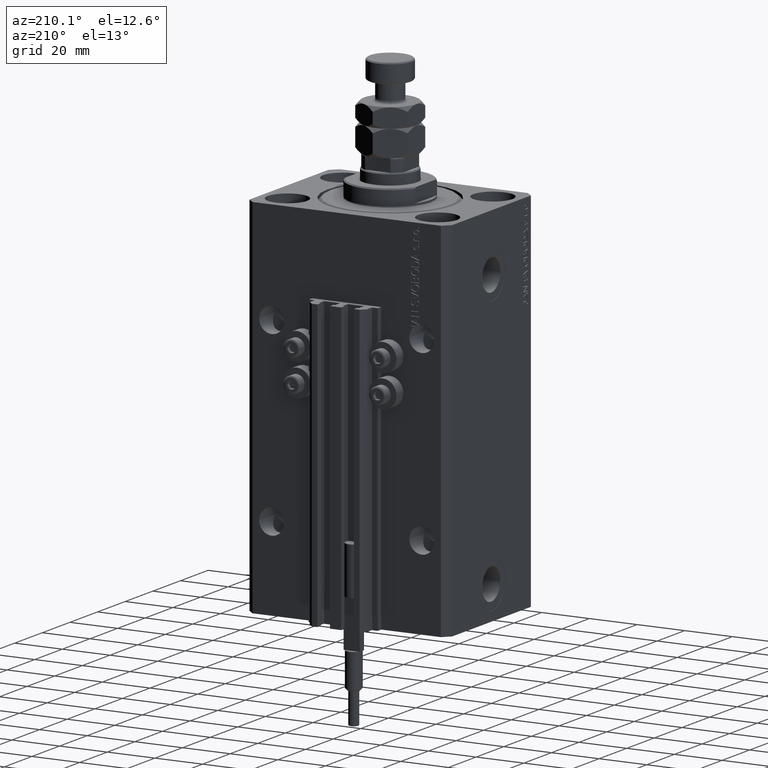
[diagram: clean part render]
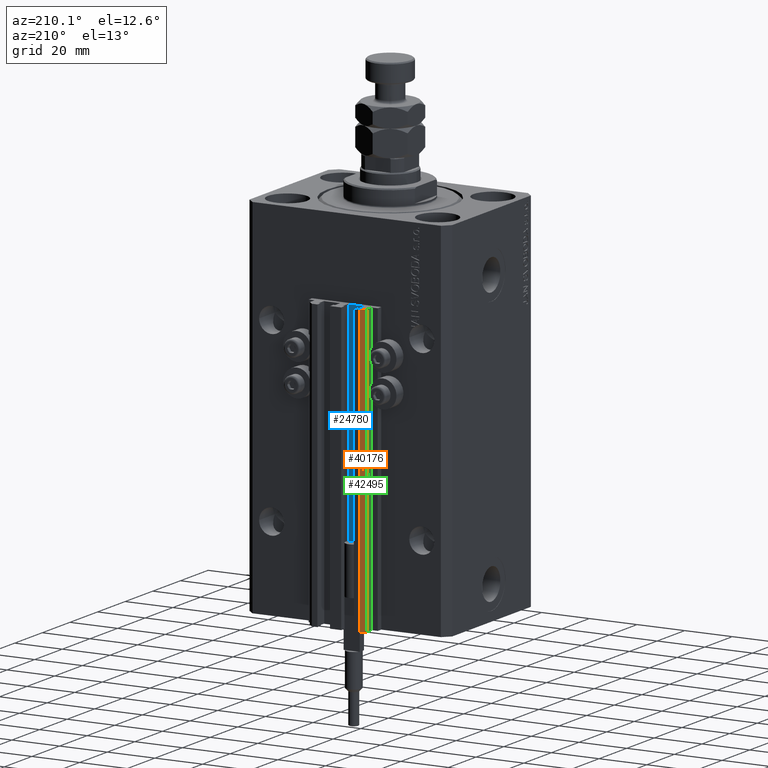
[diagram: same view with three faces highlighted in distinct colors, each labeled with its STEP entity id]
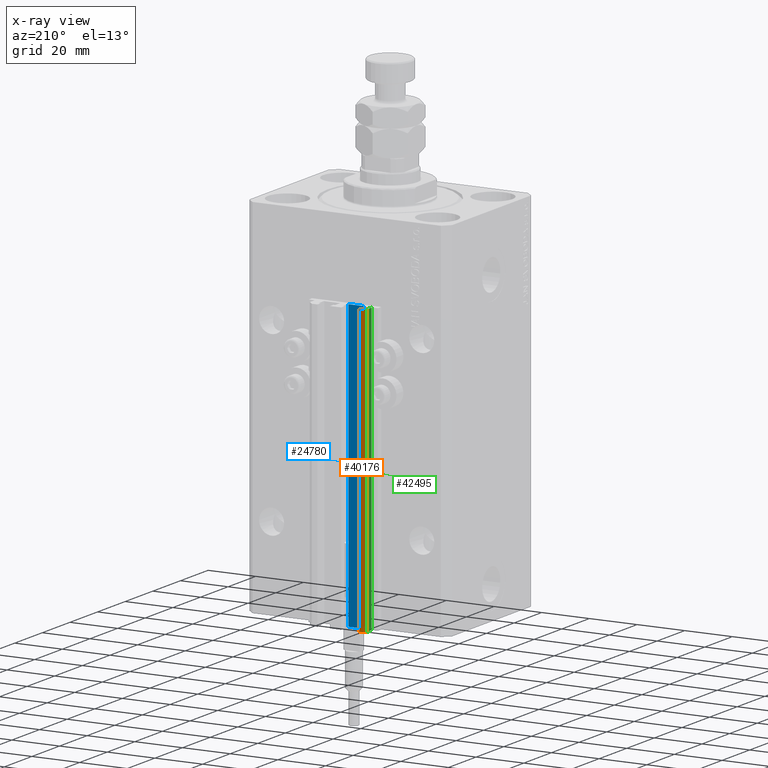
[diagram: x-ray of the same camera — body ghosted, the three highlighted faces saturated]
A machine part, auxiliary view with three faces highlighted in distinct colors.
The next image is the same camera in x-ray (body ghosted, the three faces saturated) — at least one of them is partly hidden behind the body in this view.
Their STEP definitions:

[orange] entity #40176 — the highlighted planar face has unit normal (-0.7071, 0.7071, 0).
#122 = CARTESIAN_POINT ( 'NONE',  ( -12.00000000000000000, 37.49999999999999289, -33.00000000000000000 ) ) ;
#1200 = LINE ( 'NONE', #13208, #17939 ) ;
#2870 = ORIENTED_EDGE ( 'NONE', *, *, #6327, .F. ) ;
#3525 = DIRECTION ( 'NONE',  ( -0.7071067811865472397, -0.7071067811865479058, 0.000000000000000000 ) ) ;
#3603 = VECTOR ( 'NONE', #37001, 999.9999999999998863 ) ;
#4174 = ORIENTED_EDGE ( 'NONE', *, *, #13175, .T. ) ;
#6327 = EDGE_CURVE ( 'NONE', #42154, #9538, #9653, .T. ) ;
#8878 = DIRECTION ( 'NONE',  ( 0.000000000000000000, 0.000000000000000000, 1.000000000000000000 ) ) ;
#9399 = DIRECTION ( 'NONE',  ( 0.000000000000000000, 0.000000000000000000, 1.000000000000000000 ) ) ;
#9538 = VERTEX_POINT ( 'NONE', #34106 ) ;
#9653 = LINE ( 'NONE', #49459, #33865 ) ;
#11024 = CARTESIAN_POINT ( 'NONE',  ( -10.00000000000000000, 39.49999999999999289, -153.0000000000000000 ) ) ;
#11202 = LINE ( 'NONE', #31140, #45678 ) ;
#12562 = VERTEX_POINT ( 'NONE', #37371 ) ;
#13175 = EDGE_CURVE ( 'NONE', #12562, #21699, #1200, .T. ) ;
#13208 = CARTESIAN_POINT ( 'NONE',  ( -12.00000000000000000, 37.49999999999999289, -153.0000000000000000 ) ) ;
#14840 = FACE_OUTER_BOUND ( 'NONE', #33559, .T. ) ;
#17939 = VECTOR ( 'NONE', #8878, 1000.000000000000000 ) ;
#19415 = PLANE ( 'NONE',  #41803 ) ;
#21550 = EDGE_CURVE ( 'NONE', #42154, #12562, #32132, .T. ) ;
#21699 = VERTEX_POINT ( 'NONE', #122 ) ;
#22769 = CARTESIAN_POINT ( 'NONE',  ( -10.00000000000000000, 39.49999999999999289, -153.0000000000000000 ) ) ;
#28567 = CARTESIAN_POINT ( 'NONE',  ( -10.00000000000000000, 39.49999999999999289, -153.0000000000000000 ) ) ;
#30288 = ORIENTED_EDGE ( 'NONE', *, *, #21550, .T. ) ;
#31140 = CARTESIAN_POINT ( 'NONE',  ( -10.00000000000000000, 39.49999999999999289, -33.00000000000000000 ) ) ;
#31191 = DIRECTION ( 'NONE',  ( -0.7071067811865472397, -0.7071067811865479058, 0.000000000000000000 ) ) ;
#32132 = LINE ( 'NONE', #28567, #3603 ) ;
#33559 = EDGE_LOOP ( 'NONE', ( #49760, #2870, #30288, #4174 ) ) ;
#33865 = VECTOR ( 'NONE', #9399, 1000.000000000000000 ) ;
#34106 = CARTESIAN_POINT ( 'NONE',  ( -10.00000000000000000, 39.49999999999999289, -33.00000000000000000 ) ) ;
#37001 = DIRECTION ( 'NONE',  ( -0.7071067811865472397, -0.7071067811865479058, 0.000000000000000000 ) ) ;
#37371 = CARTESIAN_POINT ( 'NONE',  ( -12.00000000000000000, 37.49999999999999289, -153.0000000000000000 ) ) ;
#40176 = ADVANCED_FACE ( 'NONE', ( #14840 ), #19415, .T. ) ;
#41803 = AXIS2_PLACEMENT_3D ( 'NONE', #22769, #46785, #31191 ) ;
#42154 = VERTEX_POINT ( 'NONE', #11024 ) ;
#45678 = VECTOR ( 'NONE', #3525, 999.9999999999998863 ) ;
#46785 = DIRECTION ( 'NONE',  ( -0.7071067811865479058, 0.7071067811865472397, 0.000000000000000000 ) ) ;
#47260 = EDGE_CURVE ( 'NONE', #9538, #21699, #11202, .T. ) ;
#49459 = CARTESIAN_POINT ( 'NONE',  ( -10.00000000000000000, 39.49999999999999289, -153.0000000000000000 ) ) ;
#49760 = ORIENTED_EDGE ( 'NONE', *, *, #47260, .F. ) ;

[blue] entity #24780 — the highlighted planar face has unit normal (0, 1, 0).
#97 = CARTESIAN_POINT ( 'NONE',  ( -8.199999999999997513, 33.50000000000000000, -33.00000000000000000 ) ) ;
#1814 = FACE_OUTER_BOUND ( 'NONE', #21886, .T. ) ;
#4168 = ORIENTED_EDGE ( 'NONE', *, *, #7399, .F. ) ;
#6131 = VECTOR ( 'NONE', #18323, 1000.000000000000000 ) ;
#6430 = EDGE_CURVE ( 'NONE', #23986, #16268, #10603, .T. ) ;
#6548 = ORIENTED_EDGE ( 'NONE', *, *, #40722, .F. ) ;
#6583 = CARTESIAN_POINT ( 'NONE',  ( -1.800000000000000933, 33.50000000000000000, -153.0000000000000000 ) ) ;
#7399 = EDGE_CURVE ( 'NONE', #44749, #30513, #26020, .T. ) ;
#8984 = PLANE ( 'NONE',  #31492 ) ;
#9574 = CARTESIAN_POINT ( 'NONE',  ( -1.800000000000000933, 33.50000000000000000, -153.0000000000000000 ) ) ;
#10603 = LINE ( 'NONE', #26204, #19964 ) ;
#13245 = DIRECTION ( 'NONE',  ( -1.000000000000000000, 0.000000000000000000, 0.000000000000000000 ) ) ;
#16268 = VERTEX_POINT ( 'NONE', #97 ) ;
#18323 = DIRECTION ( 'NONE',  ( 0.000000000000000000, 0.000000000000000000, 1.000000000000000000 ) ) ;
#19964 = VECTOR ( 'NONE', #22600, 1000.000000000000000 ) ;
#21852 = ORIENTED_EDGE ( 'NONE', *, *, #26007, .T. ) ;
#21886 = EDGE_LOOP ( 'NONE', ( #6548, #4168, #21852, #45156 ) ) ;
#22600 = DIRECTION ( 'NONE',  ( 0.000000000000000000, 0.000000000000000000, 1.000000000000000000 ) ) ;
#23986 = VERTEX_POINT ( 'NONE', #27317 ) ;
#24063 = DIRECTION ( 'NONE',  ( 0.000000000000000000, 0.000000000000000000, 1.000000000000000000 ) ) ;
#24780 = ADVANCED_FACE ( 'NONE', ( #1814 ), #8984, .T. ) ;
#25241 = CARTESIAN_POINT ( 'NONE',  ( -1.800000000000000933, 33.50000000000000000, -33.00000000000000000 ) ) ;
#26007 = EDGE_CURVE ( 'NONE', #44749, #23986, #37028, .T. ) ;
#26020 = LINE ( 'NONE', #6583, #6131 ) ;
#26204 = CARTESIAN_POINT ( 'NONE',  ( -8.199999999999997513, 33.50000000000000000, -153.0000000000000000 ) ) ;
#27317 = CARTESIAN_POINT ( 'NONE',  ( -8.199999999999997513, 33.50000000000000000, -153.0000000000000000 ) ) ;
#30513 = VERTEX_POINT ( 'NONE', #33849 ) ;
#31492 = AXIS2_PLACEMENT_3D ( 'NONE', #32744, #32487, #24063 ) ;
#32487 = DIRECTION ( 'NONE',  ( 0.000000000000000000, 1.000000000000000000, -0.000000000000000000 ) ) ;
#32744 = CARTESIAN_POINT ( 'NONE',  ( -1.800000000000000933, 33.50000000000000000, -153.0000000000000000 ) ) ;
#33849 = CARTESIAN_POINT ( 'NONE',  ( -1.800000000000000933, 33.50000000000000000, -33.00000000000000000 ) ) ;
#37028 = LINE ( 'NONE', #44429, #45420 ) ;
#40722 = EDGE_CURVE ( 'NONE', #30513, #16268, #44395, .T. ) ;
#44395 = LINE ( 'NONE', #25241, #47165 ) ;
#44429 = CARTESIAN_POINT ( 'NONE',  ( -1.800000000000000933, 33.50000000000000000, -153.0000000000000000 ) ) ;
#44749 = VERTEX_POINT ( 'NONE', #9574 ) ;
#44925 = DIRECTION ( 'NONE',  ( -1.000000000000000000, 0.000000000000000000, 0.000000000000000000 ) ) ;
#45156 = ORIENTED_EDGE ( 'NONE', *, *, #6430, .T. ) ;
#45420 = VECTOR ( 'NONE', #13245, 1000.000000000000000 ) ;
#47165 = VECTOR ( 'NONE', #44925, 1000.000000000000000 ) ;

[green] entity #42495 — the highlighted planar face has unit normal (-1, 0, 0).
#122 = CARTESIAN_POINT ( 'NONE',  ( -12.00000000000000000, 37.49999999999999289, -33.00000000000000000 ) ) ;
#1200 = LINE ( 'NONE', #13208, #17939 ) ;
#1543 = EDGE_CURVE ( 'NONE', #26509, #43693, #8969, .T. ) ;
#2833 = CARTESIAN_POINT ( 'NONE',  ( -12.00000000000000000, 34.19999999999999574, -153.0000000000000000 ) ) ;
#2956 = ORIENTED_EDGE ( 'NONE', *, *, #13175, .F. ) ;
#3684 = ORIENTED_EDGE ( 'NONE', *, *, #38324, .F. ) ;
#5080 = DIRECTION ( 'NONE',  ( 0.000000000000000000, -1.000000000000000000, 0.000000000000000000 ) ) ;
#8070 = AXIS2_PLACEMENT_3D ( 'NONE', #16321, #36516, #43927 ) ;
#8878 = DIRECTION ( 'NONE',  ( 0.000000000000000000, 0.000000000000000000, 1.000000000000000000 ) ) ;
#8969 = LINE ( 'NONE', #31966, #41206 ) ;
#12562 = VERTEX_POINT ( 'NONE', #37371 ) ;
#13175 = EDGE_CURVE ( 'NONE', #12562, #21699, #1200, .T. ) ;
#13208 = CARTESIAN_POINT ( 'NONE',  ( -12.00000000000000000, 37.49999999999999289, -153.0000000000000000 ) ) ;
#14459 = CARTESIAN_POINT ( 'NONE',  ( -12.00000000000000000, 34.19999999999999574, -33.00000000000000000 ) ) ;
#15850 = EDGE_CURVE ( 'NONE', #12562, #26509, #27579, .T. ) ;
#16321 = CARTESIAN_POINT ( 'NONE',  ( -12.00000000000000000, 37.49999999999999289, -153.0000000000000000 ) ) ;
#17640 = LINE ( 'NONE', #37837, #35943 ) ;
#17939 = VECTOR ( 'NONE', #8878, 1000.000000000000000 ) ;
#18392 = DIRECTION ( 'NONE',  ( 0.000000000000000000, -1.000000000000000000, 0.000000000000000000 ) ) ;
#21699 = VERTEX_POINT ( 'NONE', #122 ) ;
#26509 = VERTEX_POINT ( 'NONE', #2833 ) ;
#27020 = ORIENTED_EDGE ( 'NONE', *, *, #1543, .T. ) ;
#27579 = LINE ( 'NONE', #43165, #36169 ) ;
#28344 = PLANE ( 'NONE',  #8070 ) ;
#28648 = DIRECTION ( 'NONE',  ( 0.000000000000000000, 0.000000000000000000, 1.000000000000000000 ) ) ;
#31966 = CARTESIAN_POINT ( 'NONE',  ( -12.00000000000000000, 34.19999999999999574, -153.0000000000000000 ) ) ;
#35943 = VECTOR ( 'NONE', #18392, 1000.000000000000000 ) ;
#36169 = VECTOR ( 'NONE', #5080, 1000.000000000000000 ) ;
#36516 = DIRECTION ( 'NONE',  ( -1.000000000000000000, 0.000000000000000000, 0.000000000000000000 ) ) ;
#37371 = CARTESIAN_POINT ( 'NONE',  ( -12.00000000000000000, 37.49999999999999289, -153.0000000000000000 ) ) ;
#37472 = EDGE_LOOP ( 'NONE', ( #3684, #2956, #37844, #27020 ) ) ;
#37837 = CARTESIAN_POINT ( 'NONE',  ( -12.00000000000000000, 37.49999999999999289, -33.00000000000000000 ) ) ;
#37844 = ORIENTED_EDGE ( 'NONE', *, *, #15850, .T. ) ;
#38324 = EDGE_CURVE ( 'NONE', #21699, #43693, #17640, .T. ) ;
#41206 = VECTOR ( 'NONE', #28648, 1000.000000000000000 ) ;
#42495 = ADVANCED_FACE ( 'NONE', ( #44697 ), #28344, .T. ) ;
#43165 = CARTESIAN_POINT ( 'NONE',  ( -12.00000000000000000, 37.49999999999999289, -153.0000000000000000 ) ) ;
#43693 = VERTEX_POINT ( 'NONE', #14459 ) ;
#43927 = DIRECTION ( 'NONE',  ( 0.000000000000000000, 0.000000000000000000, 1.000000000000000000 ) ) ;
#44697 = FACE_OUTER_BOUND ( 'NONE', #37472, .T. ) ;